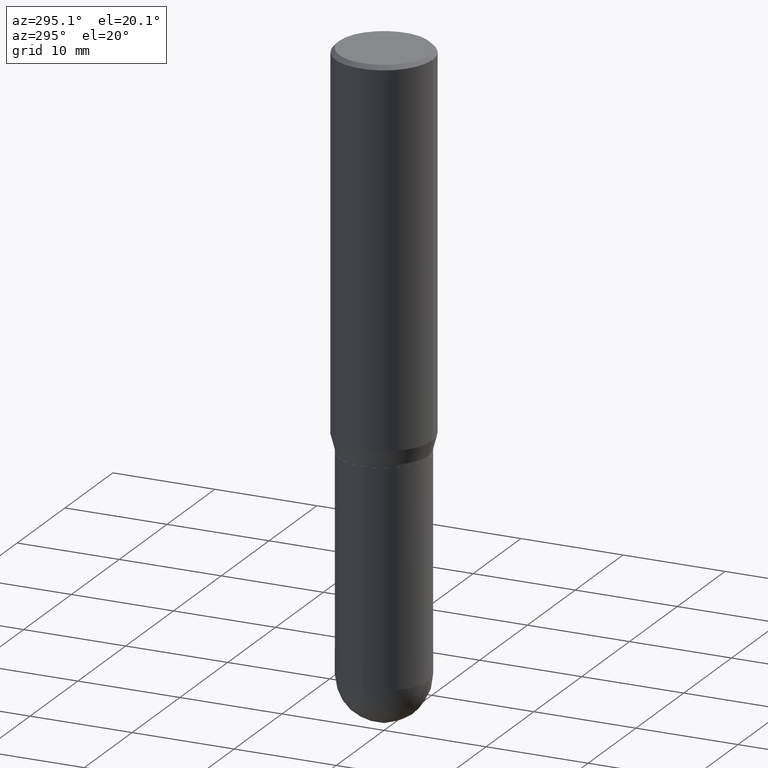
[diagram: clean part render]
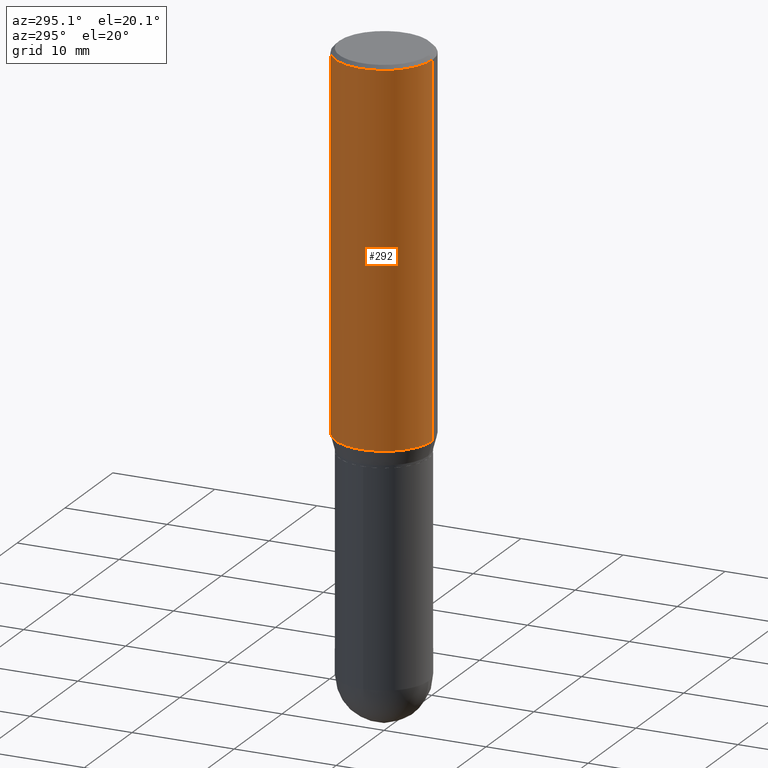
[diagram: same view with one face highlighted and labeled with its STEP entity id]
A machine part, auxiliary view. The second image highlights one B-rep face of the part: STEP entity #292.
In plain terms, the highlighted cylindrical surface (partial cylindrical patch) has radius 4.7625 mm, axis along (-0, 0, 1).
Its self-contained STEP definition (entity closure, byte-faithful):
#44 = ORIENTED_EDGE ( 'NONE', *, *, #305, .F. ) ;
#55 = EDGE_CURVE ( 'NONE', #163, #171, #126, .T. ) ;
#70 = EDGE_CURVE ( 'NONE', #171, #188, #451, .T. ) ;
#82 = LINE ( 'NONE', #473, #179 ) ;
#90 = ORIENTED_EDGE ( 'NONE', *, *, #70, .T. ) ;
#95 = CARTESIAN_POINT ( 'NONE',  ( -1.309305502066140101E-15, -0.1875000000000049960, -1.431780007401924903 ) ) ;
#126 = CIRCLE ( 'NONE', #478, 0.1875000000000000278 ) ;
#128 = EDGE_LOOP ( 'NONE', ( #44, #248, #90, #458 ) ) ;
#135 = DIRECTION ( 'NONE',  ( -2.445473974209437701E-29, 3.491473937938200789E-15, 1.000000000000000000 ) ) ;
#162 = CYLINDRICAL_SURFACE ( 'NONE', #396, 0.1875000000000000278 ) ;
#163 = VERTEX_POINT ( 'NONE', #363 ) ;
#165 = FACE_OUTER_BOUND ( 'NONE', #128, .T. ) ;
#171 = VERTEX_POINT ( 'NONE', #95 ) ;
#179 = VECTOR ( 'NONE', #246, 39.37007874015748143 ) ;
#180 = DIRECTION ( 'NONE',  ( -6.982962677686265922E-15, -1.000000000000000000, 2.913971193241880372E-15 ) ) ;
#182 = CARTESIAN_POINT ( 'NONE',  ( 3.668210961314169865E-31, -5.237210906907319302E-17, -0.01500000000000005322 ) ) ;
#188 = VERTEX_POINT ( 'NONE', #298 ) ;
#209 = CARTESIAN_POINT ( 'NONE',  ( 1.332267629550222953E-15, 0.1874999999999999445, -0.01500000000000070895 ) ) ;
#232 = CARTESIAN_POINT ( 'NONE',  ( 3.501380744894803912E-29, -4.999022580704787319E-15, -1.431780007401925348 ) ) ;
#241 = EDGE_CURVE ( 'NONE', #340, #188, #404, .T. ) ;
#246 = DIRECTION ( 'NONE',  ( -2.445473974209437982E-29, 3.491473937938200394E-15, 1.000000000000000000 ) ) ;
#248 = ORIENTED_EDGE ( 'NONE', *, *, #55, .T. ) ;
#261 = DIRECTION ( 'NONE',  ( -2.445473974209437982E-29, 3.491473937938200394E-15, 1.000000000000000000 ) ) ;
#262 = VECTOR ( 'NONE', #261, 39.37007874015748143 ) ;
#282 = DIRECTION ( 'NONE',  ( -6.982962677686265922E-15, -1.000000000000000000, 3.494488891895536035E-15 ) ) ;
#290 = DIRECTION ( 'NONE',  ( -6.982962677686265922E-15, -1.000000000000000000, 3.491473937938200789E-15 ) ) ;
#292 = ADVANCED_FACE ( 'NONE', ( #165 ), #162, .T. ) ;
#298 = CARTESIAN_POINT ( 'NONE',  ( -1.309305502066174614E-15, -0.1875000000000000833, -0.01499999999999939750 ) ) ;
#303 = CARTESIAN_POINT ( 'NONE',  ( -1.309305502066175008E-15, -0.1875000000000000278, 6.546513633634127465E-16 ) ) ;
#305 = EDGE_CURVE ( 'NONE', #163, #340, #82, .T. ) ;
#318 = CARTESIAN_POINT ( 'NONE',  ( 0.000000000000000000, 0.000000000000000000, 0.000000000000000000 ) ) ;
#340 = VERTEX_POINT ( 'NONE', #209 ) ;
#363 = CARTESIAN_POINT ( 'NONE',  ( 1.332267629550222558E-15, 0.1874999999999950318, -1.431780007401926014 ) ) ;
#396 = AXIS2_PLACEMENT_3D ( 'NONE', #318, #471, #290 ) ;
#404 = CIRCLE ( 'NONE', #475, 0.1875000000000000278 ) ;
#451 = LINE ( 'NONE', #303, #262 ) ;
#458 = ORIENTED_EDGE ( 'NONE', *, *, #241, .F. ) ;
#471 = DIRECTION ( 'NONE',  ( -2.445473974209437701E-29, 3.491473937938200789E-15, 1.000000000000000000 ) ) ;
#473 = CARTESIAN_POINT ( 'NONE',  ( 1.332267629550187651E-15, 0.1875000000000000278, -6.546513633634127465E-16 ) ) ;
#475 = AXIS2_PLACEMENT_3D ( 'NONE', #182, #135, #282 ) ;
#478 = AXIS2_PLACEMENT_3D ( 'NONE', #232, #497, #180 ) ;
#497 = DIRECTION ( 'NONE',  ( -2.445473974209437701E-29, 3.491473937938200789E-15, 1.000000000000000000 ) ) ;